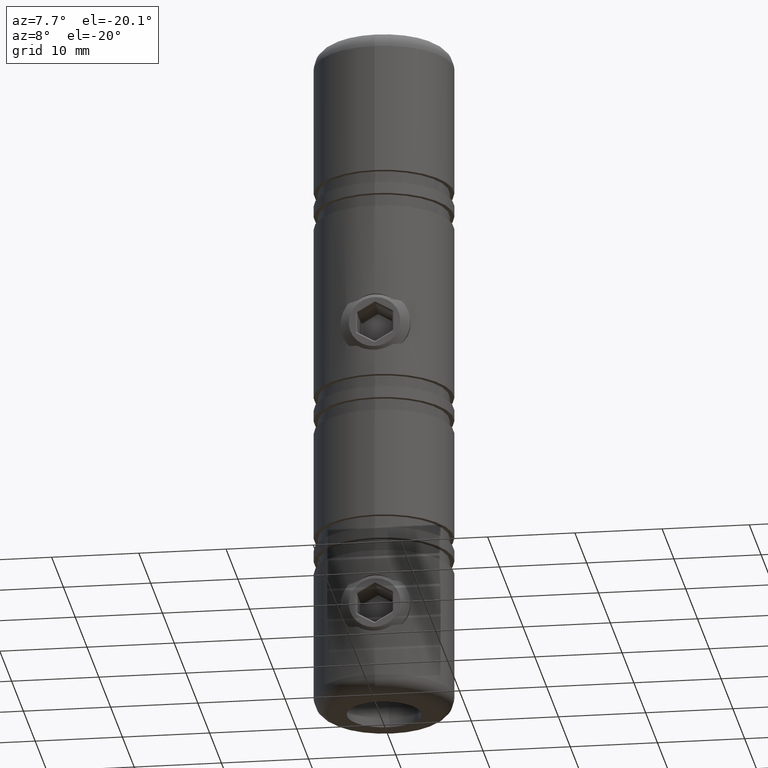
[diagram: clean part render]
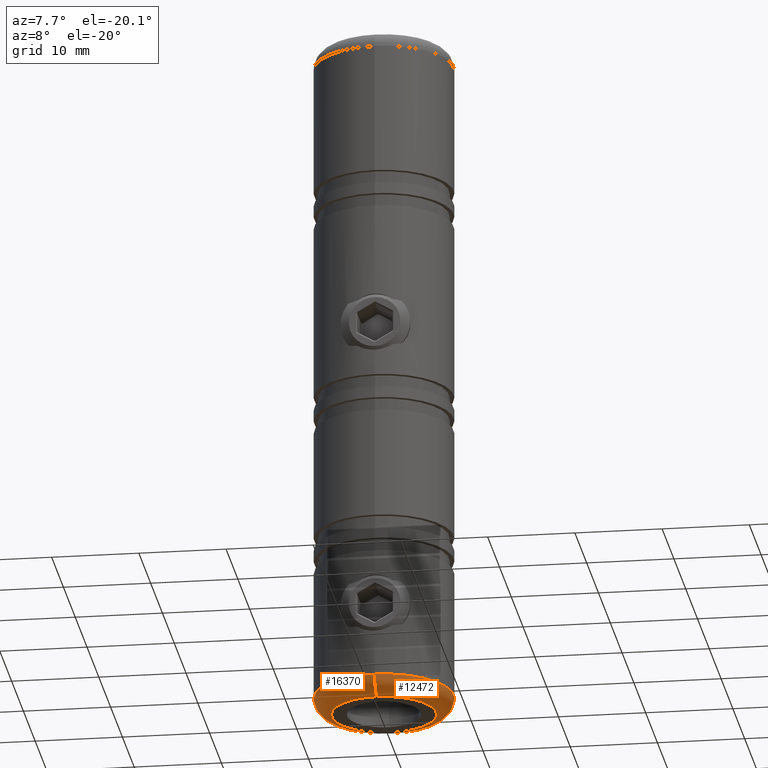
[diagram: same view with one multi-face feature highlighted, each face labeled with its STEP entity id]
A machine part, auxiliary view. The highlighted faces form ONE feature: a constant-radius fillet chain: 2 tangent blend faces with common blend radius 2 mm. The faces share edges in the B-rep.
Their STEP definitions:
[1] entity #12472 (Torus):
#5 = EDGE_CURVE ( 'NONE', #11032, #17241, #11402, .T. ) ;
#69 = VERTEX_POINT ( 'NONE', #7083 ) ;
#217 = TOROIDAL_SURFACE ( 'NONE', #7277, 5.999999999999996400, 2.000000000000000000 ) ;
#237 = ORIENTED_EDGE ( 'NONE', *, *, #17788, .T. ) ;
#1301 = DIRECTION ( 'NONE',  ( -0.0000000000000000000, 5.922595424346115800E-017, 1.000000000000000000 ) ) ;
#1693 = ORIENTED_EDGE ( 'NONE', *, *, #7485, .F. ) ;
#1873 = CARTESIAN_POINT ( 'NONE',  ( 0.0000000000000000000, -8.000000000000001800, -38.00000000000000000 ) ) ;
#3586 = AXIS2_PLACEMENT_3D ( 'NONE', #3806, #14895, #14779 ) ;
#3782 = CIRCLE ( 'NONE', #16410, 2.000000000000000900 ) ;
#3806 = CARTESIAN_POINT ( 'NONE',  ( 0.0000000000000000000, -6.000000000000000900, -38.00000000000000000 ) ) ;
#4059 = FACE_OUTER_BOUND ( 'NONE', #8266, .T. ) ;
#4374 = CARTESIAN_POINT ( 'NONE',  ( 8.572527594031469200E-016, 5.999999999999992000, -40.00000000000000000 ) ) ;
#5551 = CARTESIAN_POINT ( 'NONE',  ( 0.0000000000000000000, -4.738076339476893500E-015, -40.00000000000000000 ) ) ;
#7083 = CARTESIAN_POINT ( 'NONE',  ( 0.0000000000000000000, -6.000000000000000900, -40.00000000000000000 ) ) ;
#7277 = AXIS2_PLACEMENT_3D ( 'NONE', #12632, #12755, #12873 ) ;
#7485 = EDGE_CURVE ( 'NONE', #69, #11032, #12716, .T. ) ;
#8266 = EDGE_LOOP ( 'NONE', ( #15072, #237, #15196, #1693 ) ) ;
#9453 = DIRECTION ( 'NONE',  ( 0.0000000000000000000, -1.000000000000000000, 0.0000000000000000000 ) ) ;
#9630 = DIRECTION ( 'NONE',  ( 0.0000000000000000000, -5.922595424346115800E-017, -1.000000000000000000 ) ) ;
#10316 = AXIS2_PLACEMENT_3D ( 'NONE', #13525, #1301, #10764 ) ;
#10764 = DIRECTION ( 'NONE',  ( 0.0000000000000000000, -1.000000000000000000, 0.0000000000000000000 ) ) ;
#11032 = VERTEX_POINT ( 'NONE', #1873 ) ;
#11402 = CIRCLE ( 'NONE', #10316, 7.999999999999996400 ) ;
#12092 = VERTEX_POINT ( 'NONE', #4374 ) ;
#12143 = CIRCLE ( 'NONE', #16739, 5.999999999999996400 ) ;
#12472 = ADVANCED_FACE ( 'NONE', ( #4059 ), #217, .T. ) ;
#12632 = CARTESIAN_POINT ( 'NONE',  ( 0.0000000000000000000, -4.619624430989970600E-015, -38.00000000000000000 ) ) ;
#12716 = CIRCLE ( 'NONE', #3586, 2.000000000000001800 ) ;
#12755 = DIRECTION ( 'NONE',  ( -0.0000000000000000000, 5.922595424346115800E-017, 1.000000000000000000 ) ) ;
#12873 = DIRECTION ( 'NONE',  ( 0.0000000000000000000, -1.000000000000000000, 5.922595424346115800E-017 ) ) ;
#13525 = CARTESIAN_POINT ( 'NONE',  ( 0.0000000000000000000, -4.619624430989970600E-015, -38.00000000000000000 ) ) ;
#14683 = DIRECTION ( 'NONE',  ( 1.000000000000000000, -1.224646799147353200E-016, 7.253087529070231300E-033 ) ) ;
#14779 = DIRECTION ( 'NONE',  ( 0.0000000000000000000, 0.0000000000000000000, 1.000000000000000000 ) ) ;
#14895 = DIRECTION ( 'NONE',  ( -1.000000000000000000, -0.0000000000000000000, 0.0000000000000000000 ) ) ;
#15072 = ORIENTED_EDGE ( 'NONE', *, *, #17181, .F. ) ;
#15196 = ORIENTED_EDGE ( 'NONE', *, *, #5, .F. ) ;
#16067 = CARTESIAN_POINT ( 'NONE',  ( 7.347880794884115800E-016, 5.999999999999992000, -38.00000000000000000 ) ) ;
#16304 = CARTESIAN_POINT ( 'NONE',  ( 9.797174393178821700E-016, 7.999999999999991100, -38.00000000000000000 ) ) ;
#16410 = AXIS2_PLACEMENT_3D ( 'NONE', #16067, #14683, #17466 ) ;
#16739 = AXIS2_PLACEMENT_3D ( 'NONE', #5551, #9630, #9453 ) ;
#17181 = EDGE_CURVE ( 'NONE', #12092, #69, #12143, .T. ) ;
#17241 = VERTEX_POINT ( 'NONE', #16304 ) ;
#17466 = DIRECTION ( 'NONE',  ( 1.224646799147352500E-016, 1.000000000000000000, 0.0000000000000000000 ) ) ;
#17788 = EDGE_CURVE ( 'NONE', #12092, #17241, #3782, .T. ) ;
[2] entity #16370 (Torus):
#69 = VERTEX_POINT ( 'NONE', #7083 ) ;
#579 = EDGE_CURVE ( 'NONE', #17241, #11032, #15903, .T. ) ;
#957 = DIRECTION ( 'NONE',  ( -0.0000000000000000000, 5.922595424346115800E-017, 1.000000000000000000 ) ) ;
#1634 = ORIENTED_EDGE ( 'NONE', *, *, #11983, .F. ) ;
#1737 = CIRCLE ( 'NONE', #14984, 5.999999999999996400 ) ;
#1873 = CARTESIAN_POINT ( 'NONE',  ( 0.0000000000000000000, -8.000000000000001800, -38.00000000000000000 ) ) ;
#2318 = TOROIDAL_SURFACE ( 'NONE', #16618, 5.999999999999996400, 2.000000000000000000 ) ;
#2778 = ORIENTED_EDGE ( 'NONE', *, *, #17788, .F. ) ;
#3085 = CARTESIAN_POINT ( 'NONE',  ( 0.0000000000000000000, -4.738076339476893500E-015, -40.00000000000000000 ) ) ;
#3586 = AXIS2_PLACEMENT_3D ( 'NONE', #3806, #14895, #14779 ) ;
#3756 = CARTESIAN_POINT ( 'NONE',  ( 0.0000000000000000000, -4.619624430989970600E-015, -38.00000000000000000 ) ) ;
#3782 = CIRCLE ( 'NONE', #16410, 2.000000000000000900 ) ;
#3806 = CARTESIAN_POINT ( 'NONE',  ( 0.0000000000000000000, -6.000000000000000900, -38.00000000000000000 ) ) ;
#4374 = CARTESIAN_POINT ( 'NONE',  ( 8.572527594031469200E-016, 5.999999999999992000, -40.00000000000000000 ) ) ;
#4986 = EDGE_LOOP ( 'NONE', ( #2778, #1634, #17220, #9699 ) ) ;
#7083 = CARTESIAN_POINT ( 'NONE',  ( 0.0000000000000000000, -6.000000000000000900, -40.00000000000000000 ) ) ;
#7485 = EDGE_CURVE ( 'NONE', #69, #11032, #12716, .T. ) ;
#8581 = DIRECTION ( 'NONE',  ( 0.0000000000000000000, -5.922595424346115800E-017, -1.000000000000000000 ) ) ;
#9699 = ORIENTED_EDGE ( 'NONE', *, *, #579, .F. ) ;
#11032 = VERTEX_POINT ( 'NONE', #1873 ) ;
#11462 = DIRECTION ( 'NONE',  ( 0.0000000000000000000, -1.000000000000000000, 5.922595424346115800E-017 ) ) ;
#11983 = EDGE_CURVE ( 'NONE', #69, #12092, #1737, .T. ) ;
#12092 = VERTEX_POINT ( 'NONE', #4374 ) ;
#12716 = CIRCLE ( 'NONE', #3586, 2.000000000000001800 ) ;
#12831 = AXIS2_PLACEMENT_3D ( 'NONE', #3756, #957, #17391 ) ;
#14683 = DIRECTION ( 'NONE',  ( 1.000000000000000000, -1.224646799147353200E-016, 7.253087529070231300E-033 ) ) ;
#14779 = DIRECTION ( 'NONE',  ( 0.0000000000000000000, 0.0000000000000000000, 1.000000000000000000 ) ) ;
#14895 = DIRECTION ( 'NONE',  ( -1.000000000000000000, -0.0000000000000000000, 0.0000000000000000000 ) ) ;
#14984 = AXIS2_PLACEMENT_3D ( 'NONE', #3085, #8581, #16805 ) ;
#15421 = DIRECTION ( 'NONE',  ( -0.0000000000000000000, 5.922595424346115800E-017, 1.000000000000000000 ) ) ;
#15903 = CIRCLE ( 'NONE', #12831, 7.999999999999996400 ) ;
#16067 = CARTESIAN_POINT ( 'NONE',  ( 7.347880794884115800E-016, 5.999999999999992000, -38.00000000000000000 ) ) ;
#16304 = CARTESIAN_POINT ( 'NONE',  ( 9.797174393178821700E-016, 7.999999999999991100, -38.00000000000000000 ) ) ;
#16370 = ADVANCED_FACE ( 'NONE', ( #16468 ), #2318, .T. ) ;
#16410 = AXIS2_PLACEMENT_3D ( 'NONE', #16067, #14683, #17466 ) ;
#16468 = FACE_OUTER_BOUND ( 'NONE', #4986, .T. ) ;
#16618 = AXIS2_PLACEMENT_3D ( 'NONE', #16810, #15421, #11462 ) ;
#16805 = DIRECTION ( 'NONE',  ( 0.0000000000000000000, -1.000000000000000000, 0.0000000000000000000 ) ) ;
#16810 = CARTESIAN_POINT ( 'NONE',  ( 0.0000000000000000000, -4.619624430989970600E-015, -38.00000000000000000 ) ) ;
#17220 = ORIENTED_EDGE ( 'NONE', *, *, #7485, .T. ) ;
#17241 = VERTEX_POINT ( 'NONE', #16304 ) ;
#17391 = DIRECTION ( 'NONE',  ( 0.0000000000000000000, -1.000000000000000000, 0.0000000000000000000 ) ) ;
#17466 = DIRECTION ( 'NONE',  ( 1.224646799147352500E-016, 1.000000000000000000, 0.0000000000000000000 ) ) ;
#17788 = EDGE_CURVE ( 'NONE', #12092, #17241, #3782, .T. ) ;